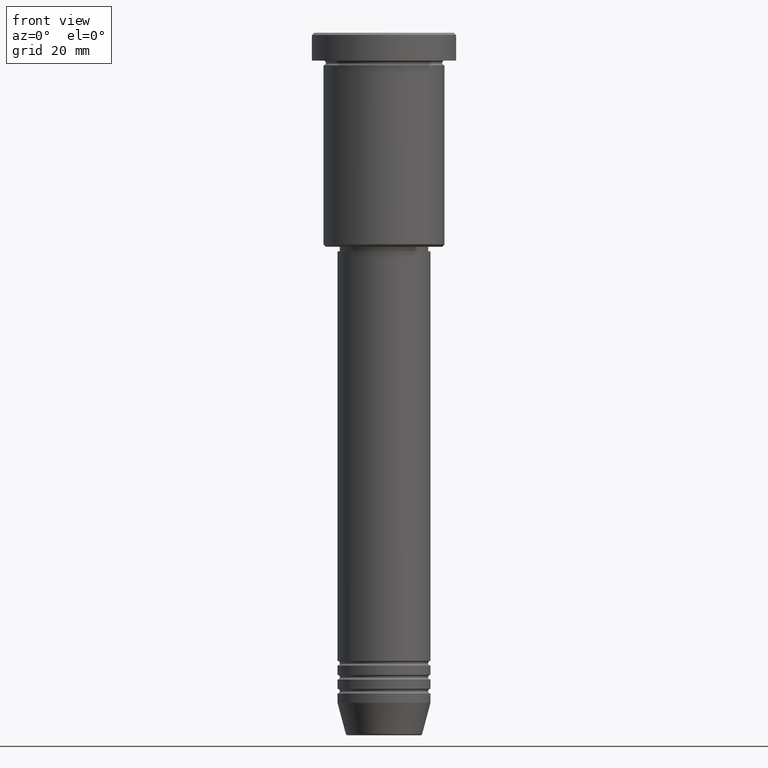
[diagram: clean part render]
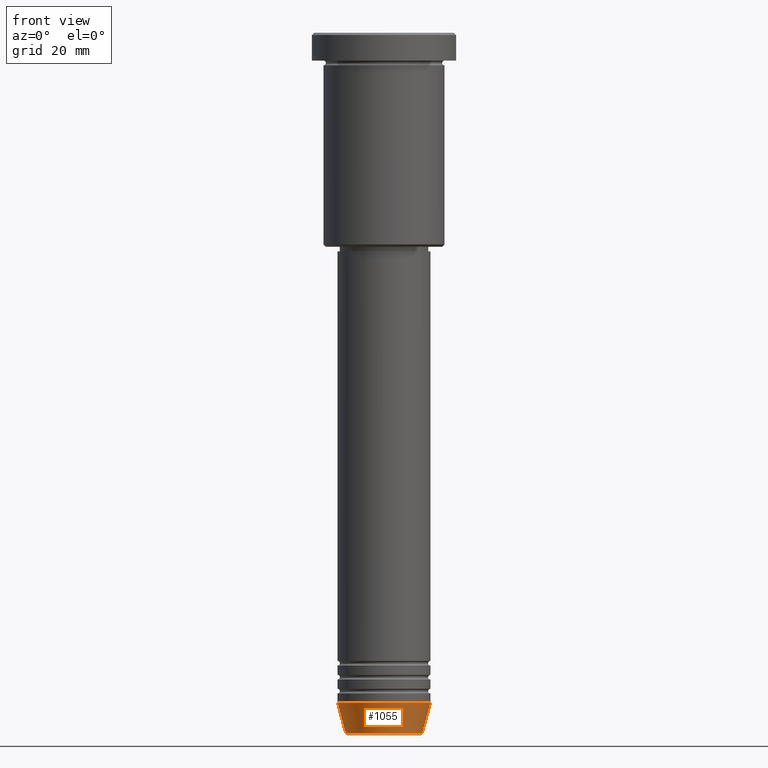
[diagram: same view with one face highlighted and labeled with its STEP entity id]
A machine part, front view. The second image highlights one B-rep face of the part: STEP entity #1055.
In plain terms, the highlighted conical surface has half-angle 15 deg.
Its self-contained STEP definition (entity closure, byte-faithful):
#25 = CARTESIAN_POINT ( 'NONE',  ( -8.223655072137198374, 1.115877042642912448E-15, -150.6294095225512137 ) ) ;
#96 = CONICAL_SURFACE ( 'NONE', #110, 10.00000000000000000, 0.2617993877991500740 ) ;
#110 = AXIS2_PLACEMENT_3D ( 'NONE', #805, #538, #1144 ) ;
#172 = EDGE_CURVE ( 'NONE', #371, #657, #254, .T. ) ;
#240 = CARTESIAN_POINT ( 'NONE',  ( -10.00000000000000000, 1.224646799147353256E-15, -144.0000000000000000 ) ) ;
#243 = ORIENTED_EDGE ( 'NONE', *, *, #817, .F. ) ;
#254 = LINE ( 'NONE', #436, #762 ) ;
#268 = CIRCLE ( 'NONE', #300, 10.00000000000000000 ) ;
#300 = AXIS2_PLACEMENT_3D ( 'NONE', #760, #305, #992 ) ;
#305 = DIRECTION ( 'NONE',  ( -0.000000000000000000, -0.000000000000000000, 1.000000000000000000 ) ) ;
#333 = EDGE_CURVE ( 'NONE', #529, #657, #268, .T. ) ;
#358 = CARTESIAN_POINT ( 'NONE',  ( 0.000000000000000000, 0.000000000000000000, -150.6294095225512137 ) ) ;
#359 = CARTESIAN_POINT ( 'NONE',  ( 8.223655072137198374, 0.000000000000000000, -150.6294095225512137 ) ) ;
#371 = VERTEX_POINT ( 'NONE', #359 ) ;
#378 = DIRECTION ( 'NONE',  ( 1.000000000000000000, 0.000000000000000000, 0.000000000000000000 ) ) ;
#408 = DIRECTION ( 'NONE',  ( -0.2588190451025213501, 3.169619151431772337E-17, 0.9659258262890680902 ) ) ;
#414 = CARTESIAN_POINT ( 'NONE',  ( 10.00000000000000000, 0.000000000000000000, -144.0000000000000000 ) ) ;
#435 = FACE_OUTER_BOUND ( 'NONE', #822, .T. ) ;
#436 = CARTESIAN_POINT ( 'NONE',  ( 10.00000000000000000, 0.000000000000000000, -144.0000000000000000 ) ) ;
#529 = VERTEX_POINT ( 'NONE', #1016 ) ;
#538 = DIRECTION ( 'NONE',  ( -0.000000000000000000, -0.000000000000000000, 1.000000000000000000 ) ) ;
#657 = VERTEX_POINT ( 'NONE', #414 ) ;
#744 = CIRCLE ( 'NONE', #813, 8.223655072137198374 ) ;
#760 = CARTESIAN_POINT ( 'NONE',  ( 0.000000000000000000, 0.000000000000000000, -144.0000000000000000 ) ) ;
#762 = VECTOR ( 'NONE', #799, 1000.000000000000000 ) ;
#799 = DIRECTION ( 'NONE',  ( 0.2588190451025213501, 0.000000000000000000, 0.9659258262890680902 ) ) ;
#805 = CARTESIAN_POINT ( 'NONE',  ( 0.000000000000000000, 0.000000000000000000, -144.0000000000000000 ) ) ;
#813 = AXIS2_PLACEMENT_3D ( 'NONE', #358, #841, #378 ) ;
#817 = EDGE_CURVE ( 'NONE', #910, #529, #1140, .T. ) ;
#822 = EDGE_LOOP ( 'NONE', ( #243, #1068, #1011, #958 ) ) ;
#841 = DIRECTION ( 'NONE',  ( -0.000000000000000000, -0.000000000000000000, 1.000000000000000000 ) ) ;
#910 = VERTEX_POINT ( 'NONE', #25 ) ;
#958 = ORIENTED_EDGE ( 'NONE', *, *, #333, .F. ) ;
#992 = DIRECTION ( 'NONE',  ( 1.000000000000000000, 0.000000000000000000, 0.000000000000000000 ) ) ;
#1011 = ORIENTED_EDGE ( 'NONE', *, *, #172, .T. ) ;
#1016 = CARTESIAN_POINT ( 'NONE',  ( -10.00000000000000000, 1.224646799147353256E-15, -144.0000000000000000 ) ) ;
#1055 = ADVANCED_FACE ( 'NONE', ( #435 ), #96, .T. ) ;
#1068 = ORIENTED_EDGE ( 'NONE', *, *, #1166, .T. ) ;
#1100 = VECTOR ( 'NONE', #408, 1000.000000000000000 ) ;
#1140 = LINE ( 'NONE', #240, #1100 ) ;
#1144 = DIRECTION ( 'NONE',  ( 1.000000000000000000, 0.000000000000000000, 0.000000000000000000 ) ) ;
#1166 = EDGE_CURVE ( 'NONE', #910, #371, #744, .T. ) ;